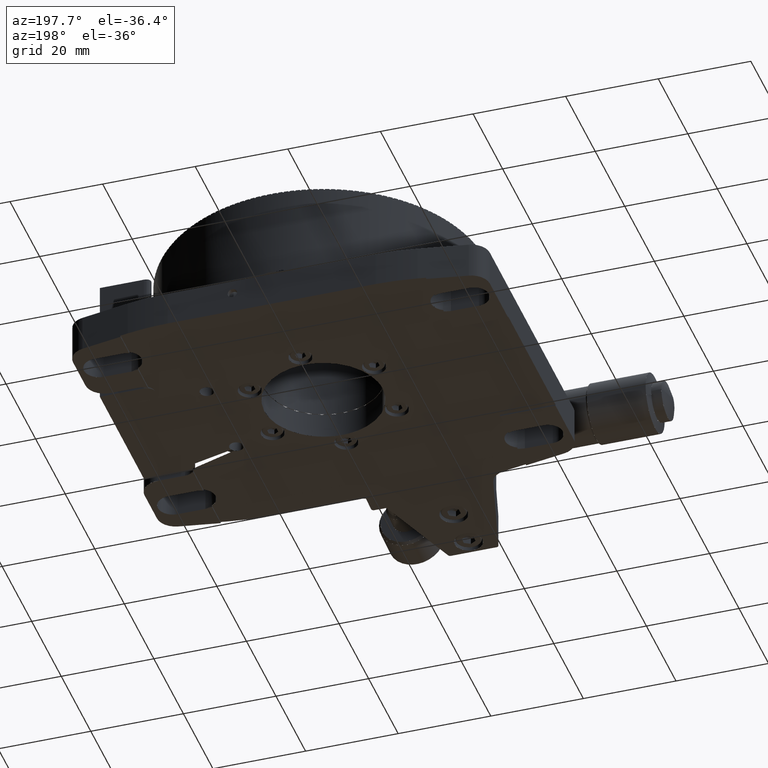
[diagram: clean part render]
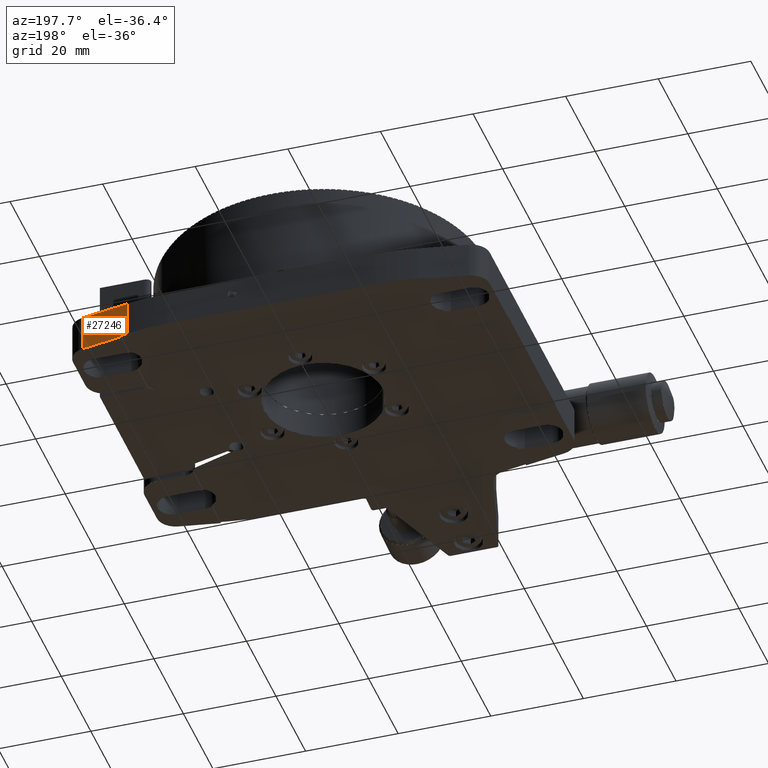
[diagram: same view with one face highlighted and labeled with its STEP entity id]
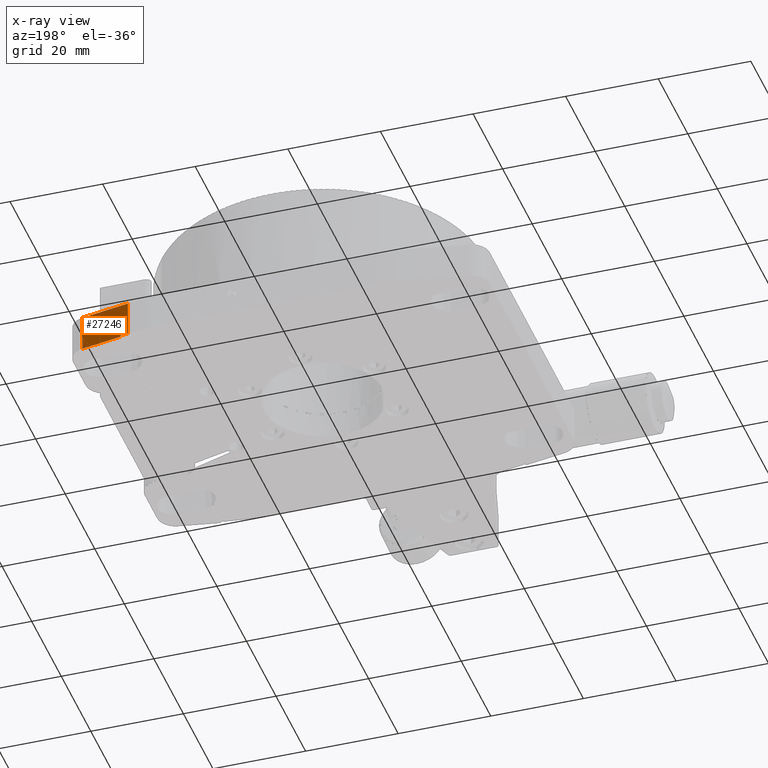
[diagram: x-ray of the same camera — body ghosted, the highlighted face saturated]
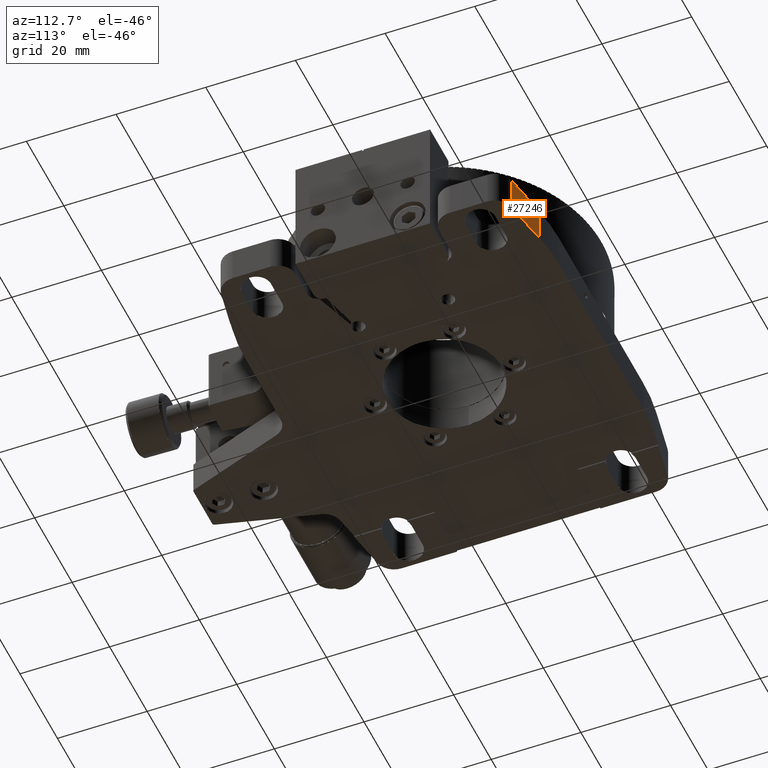
[diagram: same view with one face highlighted and labeled with its STEP entity id]
A machine part, auxiliary view. The second image highlights one B-rep face of the part: STEP entity #27246.
The next image is the same camera in x-ray: the body ghosted, the highlighted face saturated — about 0% of this face is hidden behind the body in this view.
A second angle (auxiliary view) of the same face is appended — the face is thin or edge-on in the first view.
In plain terms, the highlighted face is a freeform B-spline surface patch.
Its self-contained STEP definition (entity closure, byte-faithful):
#27246=ADVANCED_FACE('',(#29576),#129672,.T.);
#29576=FACE_OUTER_BOUND('',#31953,.T.);
#31953=EDGE_LOOP('',(#35781,#35782,#35783,#35784,#35785,#35786));
#35781=ORIENTED_EDGE('',*,*,#85635,.T.);
#35782=ORIENTED_EDGE('',*,*,#85636,.T.);
#35783=ORIENTED_EDGE('',*,*,#85637,.T.);
#35784=ORIENTED_EDGE('',*,*,#85638,.T.);
#35785=ORIENTED_EDGE('',*,*,#85639,.T.);
#35786=ORIENTED_EDGE('',*,*,#85640,.T.);
#48455=PCURVE('',#129672,#61129);
#48456=PCURVE('',#129672,#61130);
#48457=PCURVE('',#129672,#61131);
#48458=PCURVE('',#129672,#61132);
#48459=PCURVE('',#129672,#61133);
#48460=PCURVE('',#129672,#61134);
#61129=DEFINITIONAL_REPRESENTATION('',(#98431),#230981);
#61130=DEFINITIONAL_REPRESENTATION('',(#98433),#230981);
#61131=DEFINITIONAL_REPRESENTATION('',(#98435),#230981);
#61132=DEFINITIONAL_REPRESENTATION('',(#98437),#230981);
#61133=DEFINITIONAL_REPRESENTATION('',(#98439),#230981);
#61134=DEFINITIONAL_REPRESENTATION('',(#98441),#230981);
#73535=SURFACE_CURVE('',#98430,(#48455),.PCURVE_S1.);
#73536=SURFACE_CURVE('',#98432,(#48456),.PCURVE_S1.);
#73537=SURFACE_CURVE('',#98434,(#48457),.PCURVE_S1.);
#73538=SURFACE_CURVE('',#98436,(#48458),.PCURVE_S1.);
#73539=SURFACE_CURVE('',#98438,(#48459),.PCURVE_S1.);
#73540=SURFACE_CURVE('',#98440,(#48460),.PCURVE_S1.);
#85635=EDGE_CURVE('',#119080,#119082,#73535,.T.);
#85636=EDGE_CURVE('',#119082,#119083,#73536,.T.);
#85637=EDGE_CURVE('',#119083,#119084,#73537,.T.);
#85638=EDGE_CURVE('',#119084,#119085,#73538,.T.);
#85639=EDGE_CURVE('',#119085,#119081,#73539,.T.);
#85640=EDGE_CURVE('',#119081,#119080,#73540,.T.);
#98430=B_SPLINE_CURVE_WITH_KNOTS('',1,(#148801,#148802),.UNSPECIFIED.,.F.,
 .F.,(2,2),(-10.5536339140298,0.),.UNSPECIFIED.);
#98431=B_SPLINE_CURVE_WITH_KNOTS('',1,(#148803,#148804),.UNSPECIFIED.,.F.,
 .F.,(2,2),(-10.5536339140298,0.),.UNSPECIFIED.);
#98432=B_SPLINE_CURVE_WITH_KNOTS('',1,(#148805,#148806),.UNSPECIFIED.,.F.,
 .F.,(2,2),(-7.9,0.),.UNSPECIFIED.);
#98433=B_SPLINE_CURVE_WITH_KNOTS('',1,(#148807,#148808),.UNSPECIFIED.,.F.,
 .F.,(2,2),(-7.9,0.),.UNSPECIFIED.);
#98434=B_SPLINE_CURVE_WITH_KNOTS('',1,(#148809,#148810),.UNSPECIFIED.,.F.,
 .F.,(2,2),(-8.84782961549905,0.),.UNSPECIFIED.);
#98435=B_SPLINE_CURVE_WITH_KNOTS('',1,(#148811,#148812),.UNSPECIFIED.,.F.,
 .F.,(2,2),(-8.84782961549905,0.),.UNSPECIFIED.);
#98436=B_SPLINE_CURVE_WITH_KNOTS('',1,(#148813,#148814),.UNSPECIFIED.,.F.,
 .F.,(2,2),(-0.300000000000001,0.),.UNSPECIFIED.);
#98437=B_SPLINE_CURVE_WITH_KNOTS('',1,(#148815,#148816),.UNSPECIFIED.,.F.,
 .F.,(2,2),(-0.300000000000001,0.),.UNSPECIFIED.);
#98438=B_SPLINE_CURVE_WITH_KNOTS('',1,(#148817,#148818),.UNSPECIFIED.,.F.,
 .F.,(2,2),(-1.70580429853076,0.),.UNSPECIFIED.);
#98439=B_SPLINE_CURVE_WITH_KNOTS('',1,(#148819,#148820),.UNSPECIFIED.,.F.,
 .F.,(2,2),(-1.70580429853076,0.),.UNSPECIFIED.);
#98440=B_SPLINE_CURVE_WITH_KNOTS('',1,(#148821,#148822),.UNSPECIFIED.,.F.,
 .F.,(2,2),(-7.6,0.),.UNSPECIFIED.);
#98441=B_SPLINE_CURVE_WITH_KNOTS('',1,(#148823,#148824),.UNSPECIFIED.,.F.,
 .F.,(2,2),(-7.6,0.),.UNSPECIFIED.);
#119080=VERTEX_POINT('',#148795);
#119081=VERTEX_POINT('',#148796);
#119082=VERTEX_POINT('',#148797);
#119083=VERTEX_POINT('',#148798);
#119084=VERTEX_POINT('',#148799);
#119085=VERTEX_POINT('',#148800);
#129672=B_SPLINE_SURFACE_WITH_KNOTS('',1,1,((#148791,#148792),(#148793,
#148794)),.UNSPECIFIED.,.F.,.F.,.F.,(2,2),(2,2),(3.36363871789095,16.111607968123),
(-0.826000000000001,8.726),.UNSPECIFIED.);
#148791=CARTESIAN_POINT('',(75.2412962879577,-0.59544221025686,26.8213598283897));
#148792=CARTESIAN_POINT('',(75.2412962879577,-0.59544221025686,17.2693598283897));
#148793=CARTESIAN_POINT('',(87.7879326832813,-2.85212897815372,26.8213598283897));
#148794=CARTESIAN_POINT('',(87.7879326832813,-2.85212897815372,17.2693598283897));
#148795=CARTESIAN_POINT('',(76.3211360276181,-0.789666381194751,25.9953598283897));
#148796=CARTESIAN_POINT('',(76.3211360276181,-0.789666381194751,18.3953598283897));
#148797=CARTESIAN_POINT('',(86.7080929436209,-2.65790480721583,25.9953598283897));
#148798=CARTESIAN_POINT('',(86.7080929436209,-2.65790480721583,18.0953598283897));
#148799=CARTESIAN_POINT('',(77.9999999999999,-1.09163337794177,18.0953598283897));
#148800=CARTESIAN_POINT('',(77.9999999999999,-1.09163337794177,18.3953598283897));
#148801=CARTESIAN_POINT('',(76.3211360276181,-0.789666381194751,25.9953598283897));
#148802=CARTESIAN_POINT('',(86.7080929436209,-2.65790480721583,25.9953598283897));
#148803=CARTESIAN_POINT('',(4.46080638599207,-1.5707329374884E-29));
#148804=CARTESIAN_POINT('',(15.0144403000219,-5.28686382606866E-29));
#148805=CARTESIAN_POINT('',(86.7080929436209,-2.65790480721583,25.9953598283897));
#148806=CARTESIAN_POINT('',(86.7080929436209,-2.65790480721583,18.0953598283897));
#148807=CARTESIAN_POINT('',(15.0144403000219,-5.28686382606866E-29));
#148808=CARTESIAN_POINT('',(15.0144403000219,7.9));
#148809=CARTESIAN_POINT('',(86.7080929436209,-2.65790480721583,18.0953598283897));
#148810=CARTESIAN_POINT('',(77.9999999999999,-1.09163337794177,18.0953598283897));
#148811=CARTESIAN_POINT('',(15.0144403000219,7.9));
#148812=CARTESIAN_POINT('',(6.16661068452282,7.9));
#148813=CARTESIAN_POINT('',(77.9999999999999,-1.09163337794177,18.0953598283897));
#148814=CARTESIAN_POINT('',(77.9999999999999,-1.09163337794177,18.3953598283897));
#148815=CARTESIAN_POINT('',(6.16661068452282,7.9));
#148816=CARTESIAN_POINT('',(6.16661068452282,7.6));
#148817=CARTESIAN_POINT('',(77.9999999999999,-1.09163337794177,18.3953598283897));
#148818=CARTESIAN_POINT('',(76.3211360276181,-0.789666381194751,18.3953598283897));
#148819=CARTESIAN_POINT('',(6.16661068452282,7.6));
#148820=CARTESIAN_POINT('',(4.46080638599207,7.6));
#148821=CARTESIAN_POINT('',(76.3211360276181,-0.789666381194751,18.3953598283897));
#148822=CARTESIAN_POINT('',(76.3211360276181,-0.789666381194751,25.9953598283897));
#148823=CARTESIAN_POINT('',(4.46080638599207,7.6));
#148824=CARTESIAN_POINT('',(4.46080638599207,-1.5707329374884E-29));
#230981=(
GEOMETRIC_REPRESENTATION_CONTEXT(2)
PARAMETRIC_REPRESENTATION_CONTEXT()
REPRESENTATION_CONTEXT('pspace','')
);